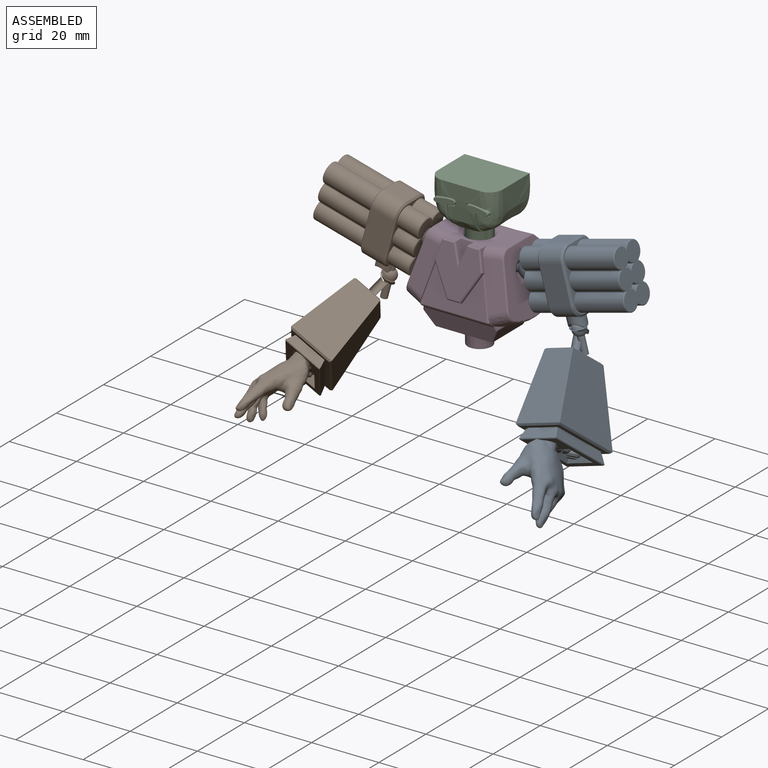
[diagram: assembled view]
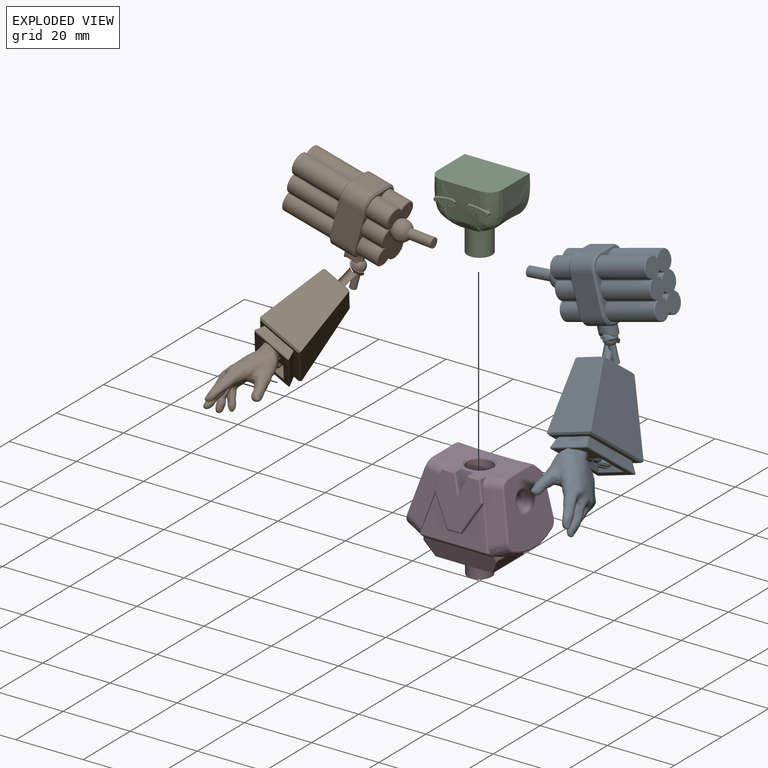
[diagram: exploded view]
GUIDED TOUR — MATED ASSEMBLY WITH SUBASSEMBLIES (Onshape document 221a4750a45c5d03d1ccc38b, AutoMate assembly 221a4750a45c5d03d1ccc38b_c852cb6edab7c67508c392dc_538b1da7b2ee24c12abb5837_default)

This assembly has 14 component occurrences arranged in 4 top-level units: 2 individual components plus 2 subassemblies (S0, S1). The tour has two levels: first the top level, where each subassembly is treated as one rigid unit; then each subassembly is toured internally in its own section (nesting deeper than one subassembly level is flattened into its subassembly's section).

Components are labeled P0..P13 across the whole record; subassembly units are labeled S0..S1. A mate is a constraint between two units; its type names the relative motion it leaves free:
  BALL — leaves all rotation about the listed point free (a ball joint),
  SLIDER — leaves translation along the listed axis free.
Axis/direction vectors are unit vectors and 'through' points are millimeter coordinates, both in the assembly's world frame.

TOP-LEVEL MATES (between units; each subassembly's internal mates are listed in its own section)
  1. SLIDER "Slider 2": P9 <-> P8, axis (0.000, 0.000, 1.000) through (0.00, 0.00, 4.60) mm

TOP-LEVEL ASSEMBLY ORDER
  1. P8 — the base component [order heuristic]
  2. S0 [order heuristic]
  3. S1 [order heuristic]
  4. P9 [order heuristic]
Order-tag legend:
  [order heuristic] — this assembly is geometrically interlocked (no collision-free removal order exists), so components are listed in mate-graph order; insertion feasibility is not verified.

Of the 14 component occurrences, 2 carry the full construction recipe — the FeatureScript program that regenerates the part's solid from scratch; the rest are supplied as boundary geometry only. Each toured unit is shown spotlighted twice — assembled, then exploded with a leader line back to its socket (green = recipe-attached component, orange = geometry-only, blue = subassembly unit; the rest desaturated gray).
NOTE — this tour is split across 2 documents so each fits a 32k-token context. This is document 1: the component sections continue in the remaining 1 document, each repeating the header above.
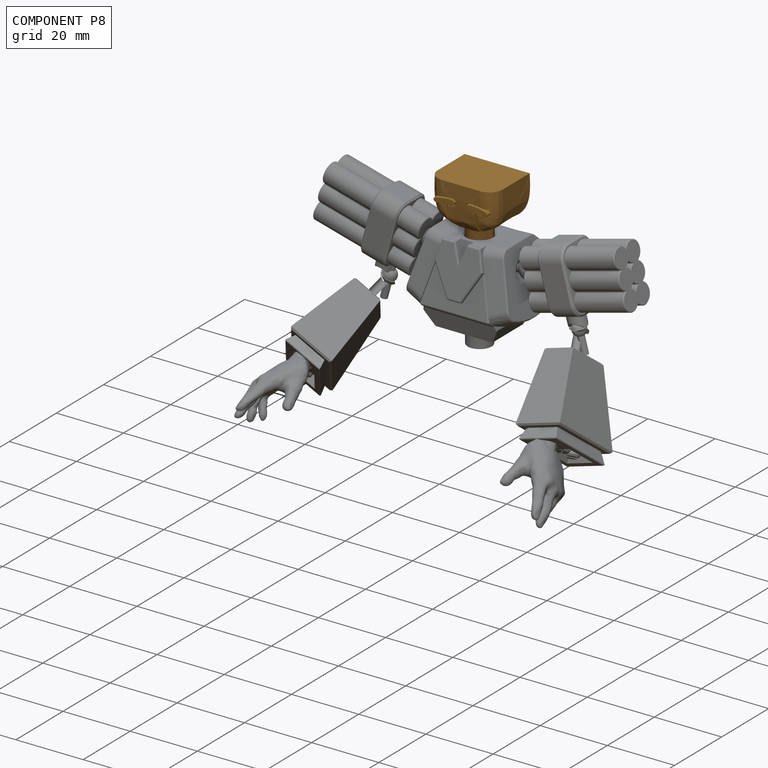
[diagram: component P8 — assembled]
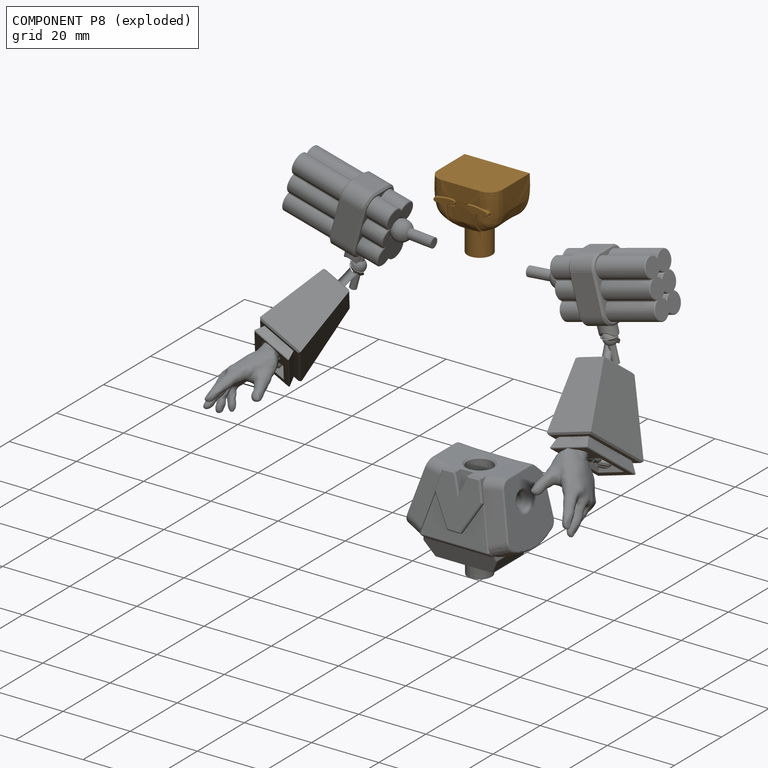
[diagram: component P8 — exploded]
COMPONENT P8 — geometry summary (no construction recipe available for this part):
  bounding box: 21.4 x 19.6 x 15.7 mm
  B-rep topology: 1 solid, 71 faces, 379 edges
  volume: 3542 mm^3 (54% of its bounding box)
  symmetry: mirror-symmetric across its x mid-plane
Held by: SLIDER mate "Slider 2" to P9.
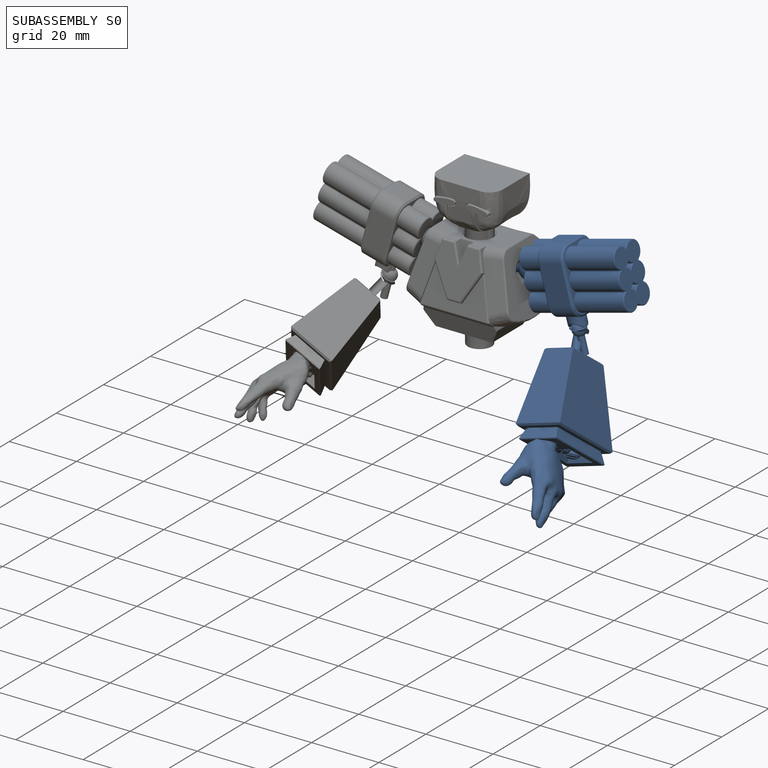
[diagram: subassembly S0 — assembled]
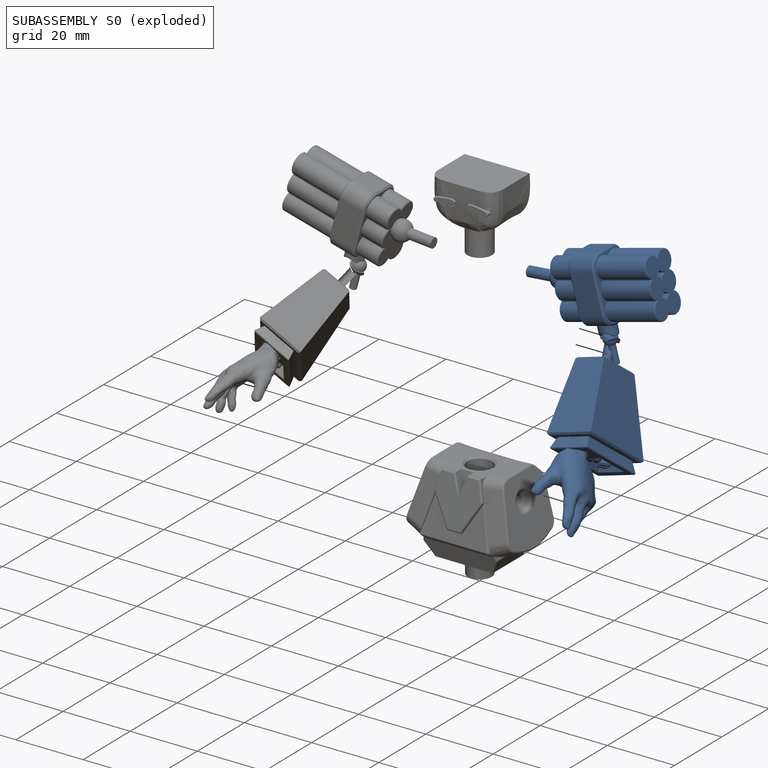
[diagram: subassembly S0 — exploded]
SUBASSEMBLY S0 — 6 components (P0, P2, P4, P6, P11, P12), of which 1 recipe-attached; toured below.
Held by: no mates (free).
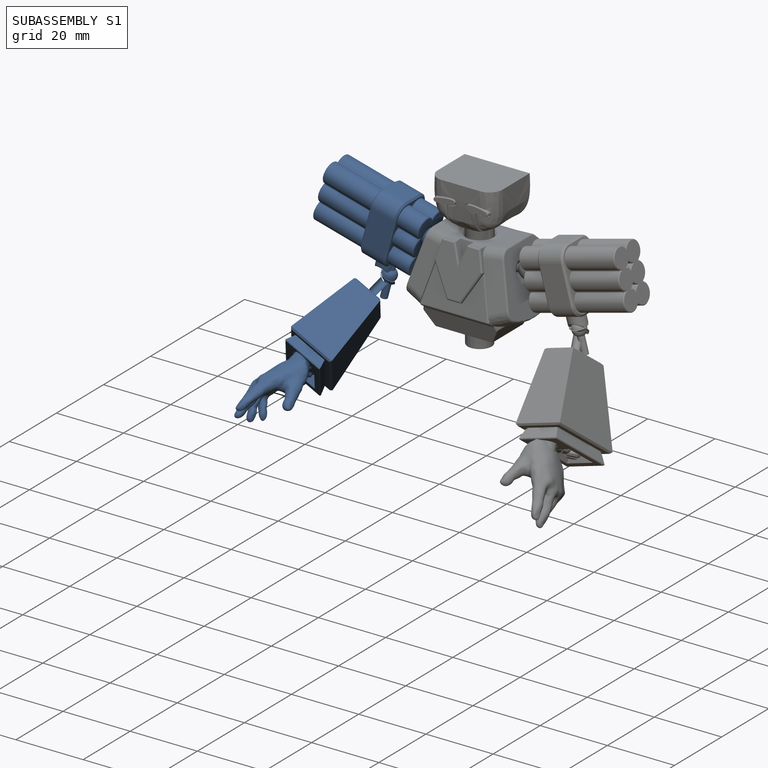
[diagram: subassembly S1 — assembled]
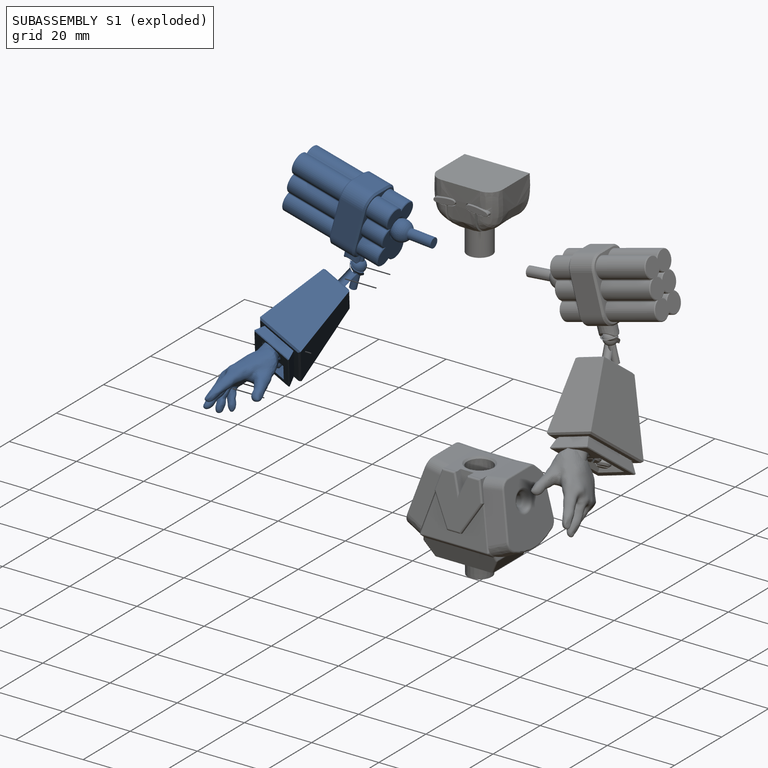
[diagram: subassembly S1 — exploded]
SUBASSEMBLY S1 — 6 components (P1, P3, P5, P7, P10, P13), of which 1 recipe-attached; toured below.
Held by: no mates (free).
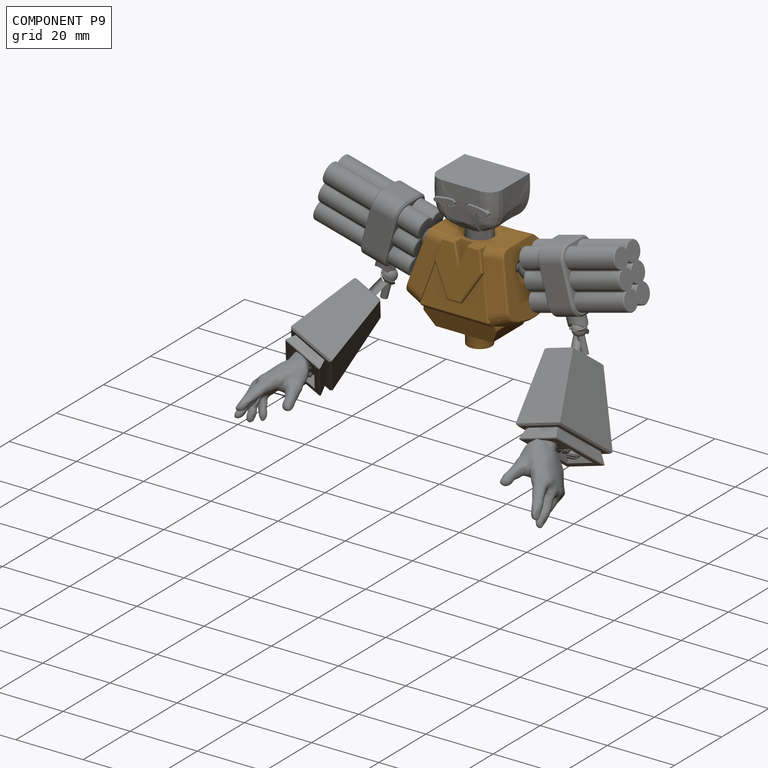
[diagram: component P9 — assembled]
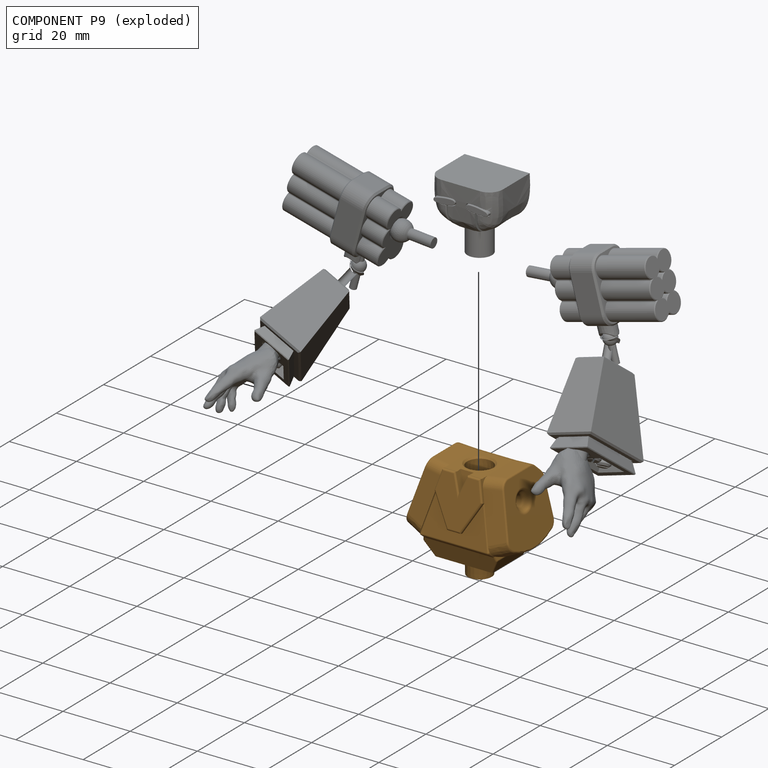
[diagram: component P9 — exploded]
COMPONENT P9 — geometry summary (no construction recipe available for this part):
  bounding box: 36.5 x 30.2 x 28.1 mm
  B-rep topology: 1 solid, 159 faces, 726 edges
  volume: 11747 mm^3 (38% of its bounding box)
Held by: SLIDER mate "Slider 2" to P8.
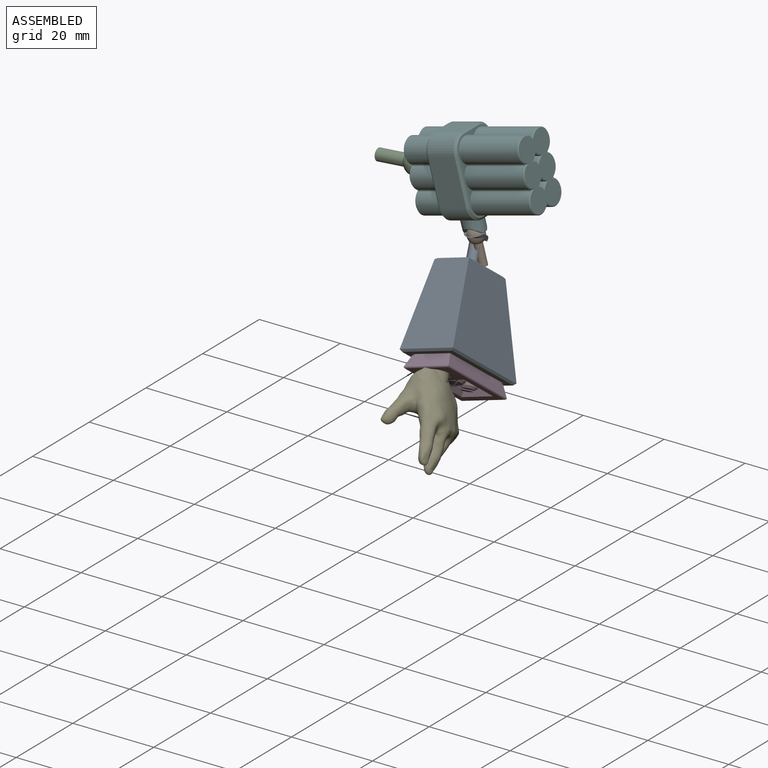
[diagram: subassembly S0 — assembled view]
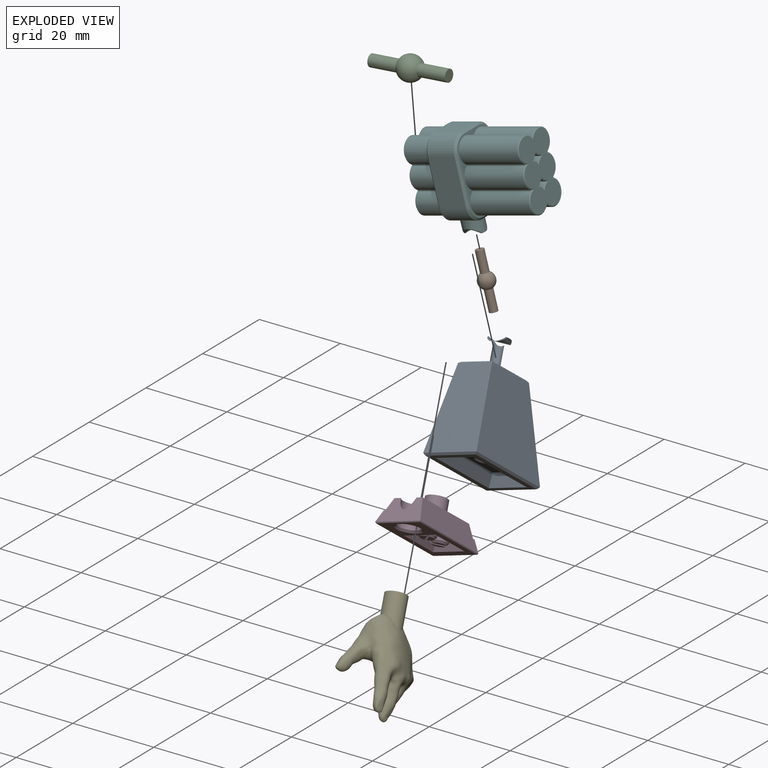
[diagram: subassembly S0 — exploded view]
SUBASSEMBLY S0 TOUR — 6 components, shown here in isolation at its own camera.

INTERNAL MATES
  1. SLIDER "Slider 1": P12 <-> P2, axis (0.259, 0.000, -0.966) through (28.32, 0.76, -5.72) mm
  2. BALL "Ball 2": P2 <-> P0, direction (-0.259, 0.000, 0.966) through (29.10, 0.76, -8.64) mm
  3. BALL "Ball 1": P2 <-> P12, direction (-0.259, 0.000, 0.966) through (29.10, 0.76, -8.64) mm
  4. SLIDER "Slider 2": P0 <-> P6, axis (0.229, -0.629, -0.743) through (35.25, -12.65, -29.04) mm
  5. SLIDER "Slider 3": P6 <-> P11, axis (0.229, -0.629, -0.743) through (35.48, -22.06, -28.75) mm
  6. BALL "Ball 3": P12 <-> P4, direction (-0.087, 0.000, 0.996) through (14.59, 0.76, 3.66) mm
  7. SLIDER "Slider 4": P4 <-> P12, axis (0.996, 0.000, 0.087) through (20.69, 0.76, 4.19) mm
  8. SLIDER "Slider 3": P6 <-> P11, axis (0.229, -0.629, -0.743) through (35.48, -22.06, -28.75) mm
  9. SLIDER "Slider 1": P12 <-> P2, axis (0.259, 0.000, -0.966) through (28.32, 0.76, -5.72) mm
  10. SLIDER "Slider 4": P4 <-> P12, axis (0.996, 0.000, 0.087) through (20.69, 0.76, 4.19) mm
  11. BALL "Ball 3": P12 <-> P4, direction (-0.087, 0.000, 0.996) through (14.59, 0.76, 3.66) mm
  12. BALL "Ball 1": P2 <-> P12, direction (-0.259, 0.000, 0.966) through (29.10, 0.76, -8.64) mm
  13. SLIDER "Slider 2": P0 <-> P6, axis (0.229, -0.629, -0.743) through (35.25, -12.65, -29.04) mm
  14. BALL "Ball 2": P2 <-> P0, direction (-0.259, 0.000, 0.966) through (29.10, 0.76, -8.64) mm

ASSEMBLY ORDER (within the subassembly)
  1. P12 — the base component [order heuristic]
  2. P2 [order heuristic]
  3. P4 [order heuristic]
  4. P0 [order heuristic]
  5. P6 [order heuristic]
  6. P11 [order heuristic]
Order-tag legend:
  [order heuristic] — this assembly is geometrically interlocked (no collision-free removal order exists), so components are listed in mate-graph order; insertion feasibility is not verified.
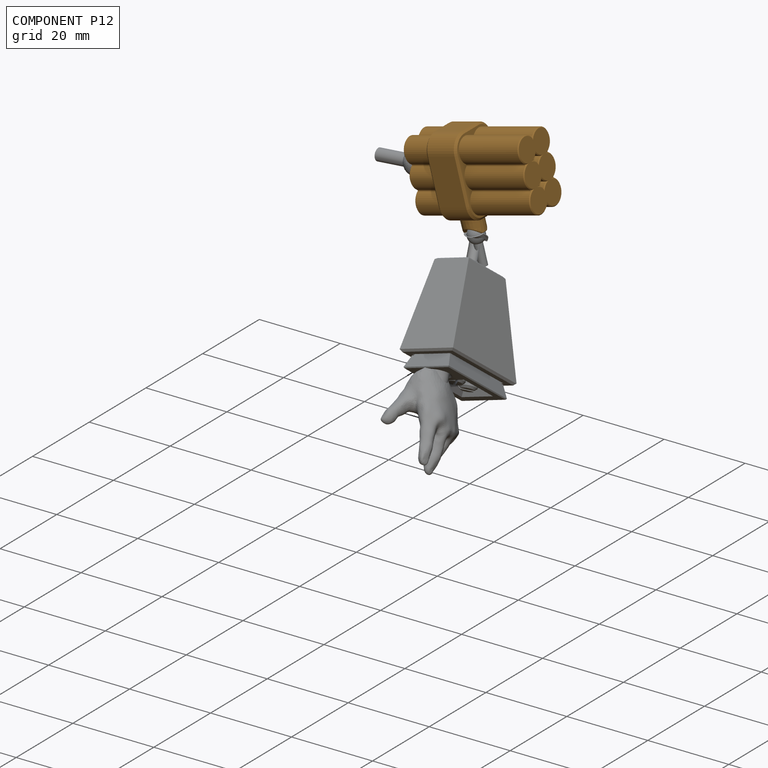
[diagram: component P12 — assembled]
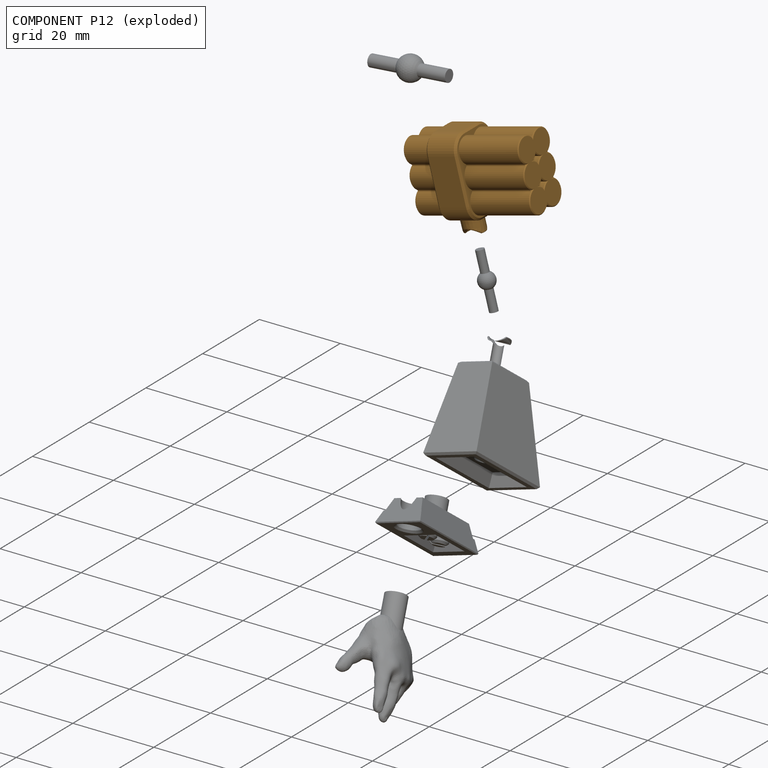
[diagram: component P12 — exploded]
COMPONENT P12 — geometry summary (no construction recipe available for this part):
  bounding box: 32.0 x 26.4 x 13.1 mm
  B-rep topology: 1 solid, 112 faces, 570 edges
  volume: 5320 mm^3 (48% of its bounding box)
  symmetry: mirror-symmetric across its y mid-plane
Held by: SLIDER mate "Slider 1" to P2; BALL mate "Ball 1" to P2; BALL mate "Ball 3" to P4; SLIDER mate "Slider 4" to P4; SLIDER mate "Slider 1" to P2; SLIDER mate "Slider 4" to P4; BALL mate "Ball 3" to P4; BALL mate "Ball 1" to P2.
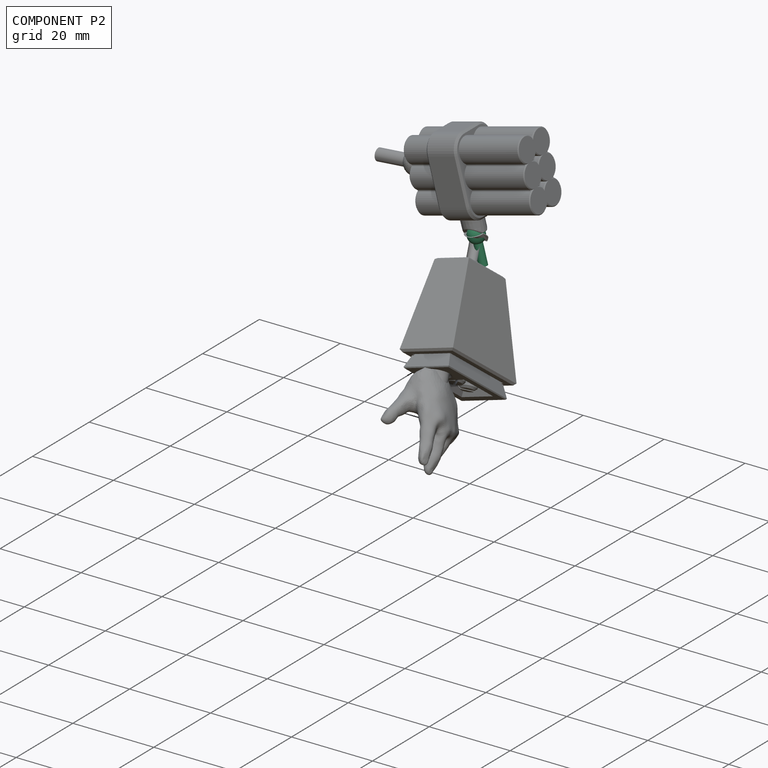
[diagram: component P2 — assembled]
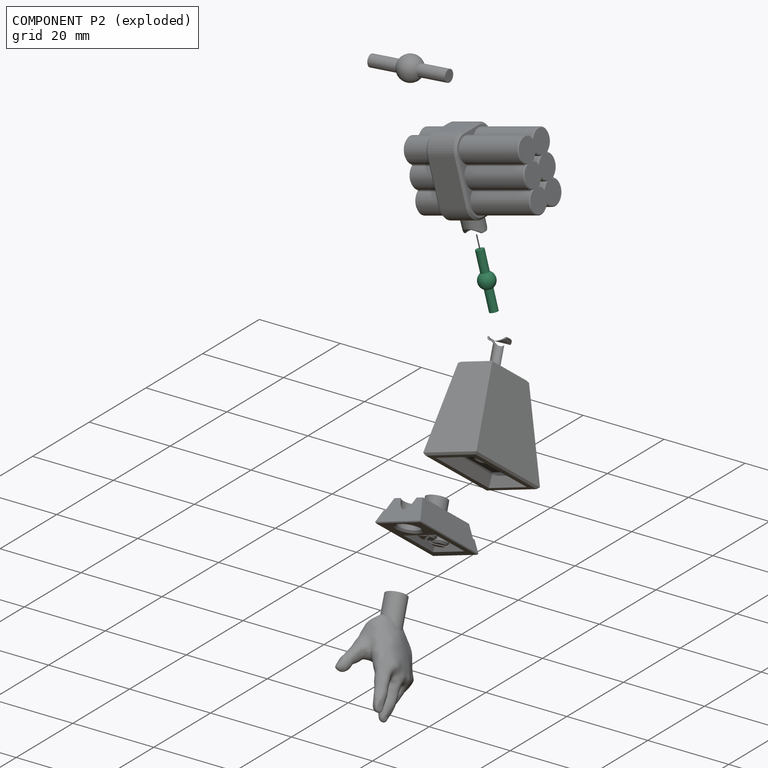
[diagram: component P2 — exploded]
COMPONENT P2 — recipe-attached (CADFS 00911417, mesh-verified: the recipe's output STEP matches this component's geometry to below the mesh-comparison resolution (tessellation chordal tolerance ~0.0219 mm)).
Held by: SLIDER mate "Slider 1" to P12; BALL mate "Ball 2" to P0; BALL mate "Ball 1" to P12; SLIDER mate "Slider 1" to P12; BALL mate "Ball 1" to P12; BALL mate "Ball 2" to P0.
Construction recipe (FeatureScript — the CAD program that rebuilds this solid; sketch coordinates are in the units given by the * unit suffixes, e.g. mm):

FeatureScript 1511;
import(path : "onshape/std/geometry.fs", version : "1511.0");
import(path : "onshape/std/common.fs", version : "1511.0");
const mm = millimeter;
const VERTEX = EntityType.VERTEX;
const EDGE = EntityType.EDGE;
const FACE = EntityType.FACE;
const BODY = EntityType.BODY;
function v(x, y){return vector(x, y);}
function OD(order){return orderDisambiguation(order);}
function OSD(set){return originalSetDisambiguation(set);}
function TD(topology){return topologyDisambiguation(topology);}
function TDD(query){return trueDependencyDisambiguation(query);}
function sQuery(a, b, c) {return sketchEntityQuery(a, b, c);}

annotation { "Feature Type Name" : "Feature", "Feature Type Description" : "" }
export const myFeature = defineFeature(function(context is Context, id is Id, definition is map)
    precondition{}
    {
        {
            var Q0;
            Q0=qCreatedBy(makeId("Front.planeOp"),FACE);
            var sketch = newSketch(context, id + "F0", { "sketchPlane" : qUnion([Q0])});
            skLineSegment(sketch, "E0", {"start": v(0, 0) * mm, "end": v(-2, 0) * mm, "construction": true});
            skLineSegment(sketch, "E1", {"start": v(0, 6.73) * mm, "end": v(0, 0) * mm, "construction": true});
            skArc(sketch, "E2", {"start": v(-2, 0) * mm, "mid": v(-1.73, 1) * mm, "end": v(-1, 1.73) * mm});
            skLineSegment(sketch, "E3", {"start": v(-1, 1.73) * mm, "end": v(-1, 6.73) * mm});
            skLineSegment(sketch, "E4", {"start": v(-1, 6.73) * mm, "end": v(0, 6.73) * mm});
            skLineSegment(sketch, "E5.MirrorCS", {"start": v(-1, -1.73) * mm, "end": v(-1, -6.73) * mm});
            skLineSegment(sketch, "E6.MirrorCS", {"start": v(-1, -6.73) * mm, "end": v(0, -6.73) * mm});
            skArc(sketch, "E7.MirrorCS", {"start": v(-2, 0) * mm, "mid": v(-1.73, -1) * mm, "end": v(-1, -1.73) * mm});
            skLineSegment(sketch, "E8", {"start": v(0, 6.73) * mm, "end": v(0, -6.73) * mm});
            skSolve(sketch);
        }
        {
            var Q0;
            Q0 = qSketchRegion(id + "F0", true);
            var Q1;
            Q1=sQuery(id+"F0.wireOp",EDGE,"E8");
            revolve(context, id + "F1", {"surfaceOperationType" : NewSurfaceOperationType.NEW, "entities" : qUnion([Q0]), "axis" : qUnion([Q1]), "revolveType" : RevolveType.FULL});
        }
    });
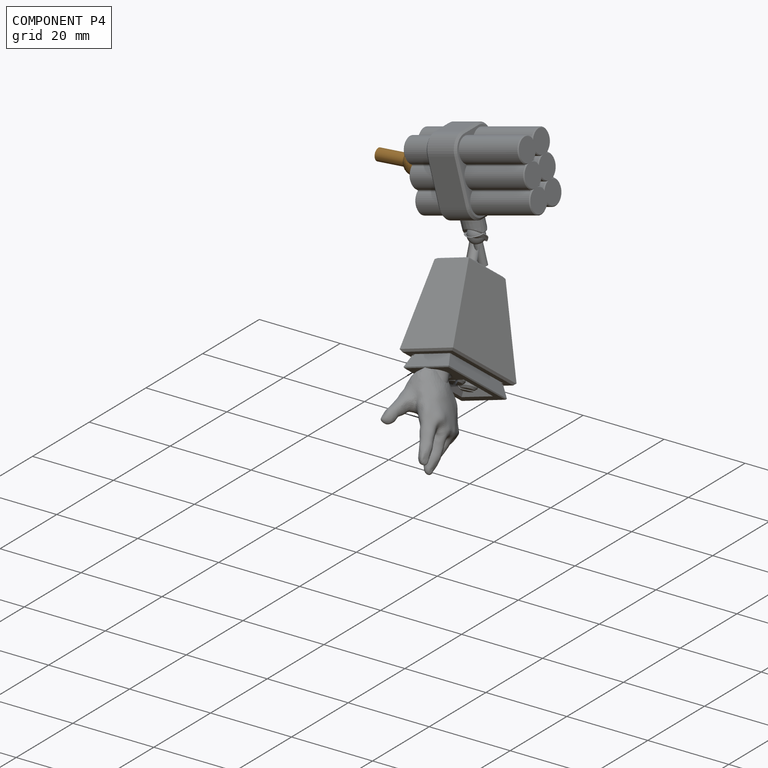
[diagram: component P4 — assembled]
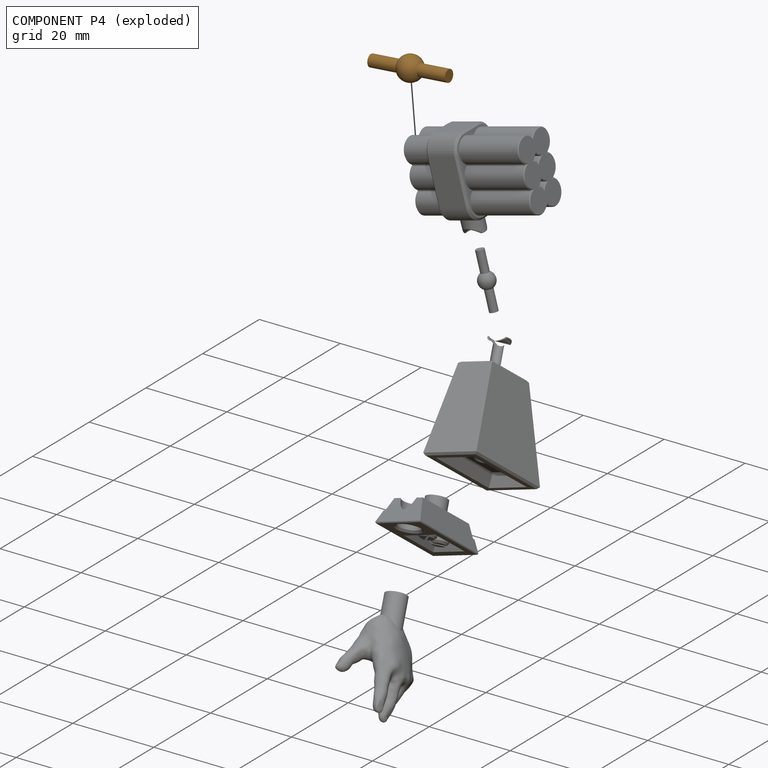
[diagram: component P4 — exploded]
COMPONENT P4 — geometry summary (no construction recipe available for this part):
  bounding box: 19.3 x 6.0 x 6.0 mm
  B-rep topology: 1 solid, 5 faces, 14 edges
  volume: 203 mm^3 (29% of its bounding box)
  symmetry: 2-fold rotationally symmetric about the x axis; 2-fold rotationally symmetric about the y axis; revolution-symmetric about the z axis through its bounding-box center; mirror-symmetric across its x mid-plane, y mid-plane, z mid-plane
Held by: BALL mate "Ball 3" to P12; SLIDER mate "Slider 4" to P12; SLIDER mate "Slider 4" to P12; BALL mate "Ball 3" to P12.
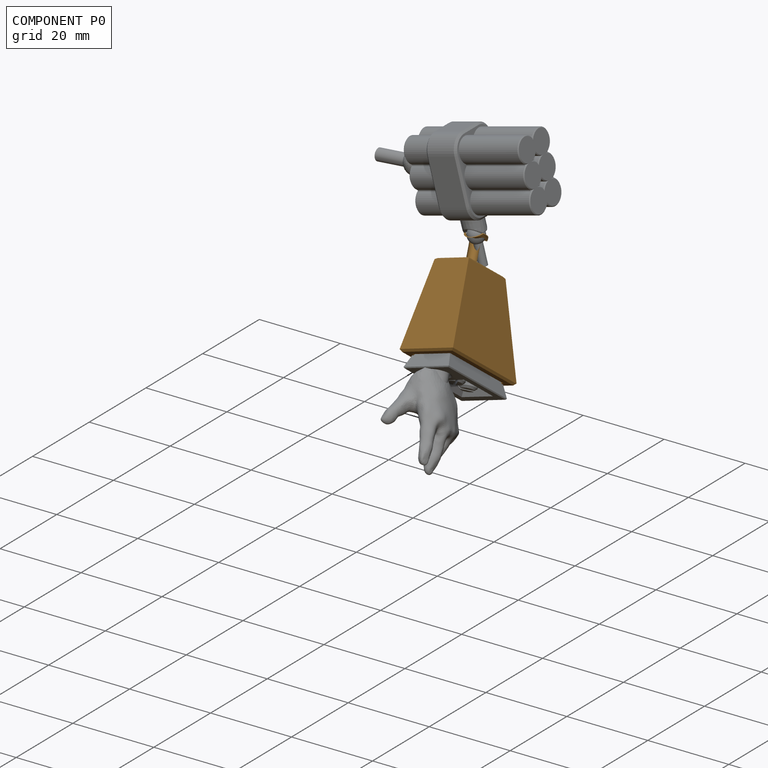
[diagram: component P0 — assembled]
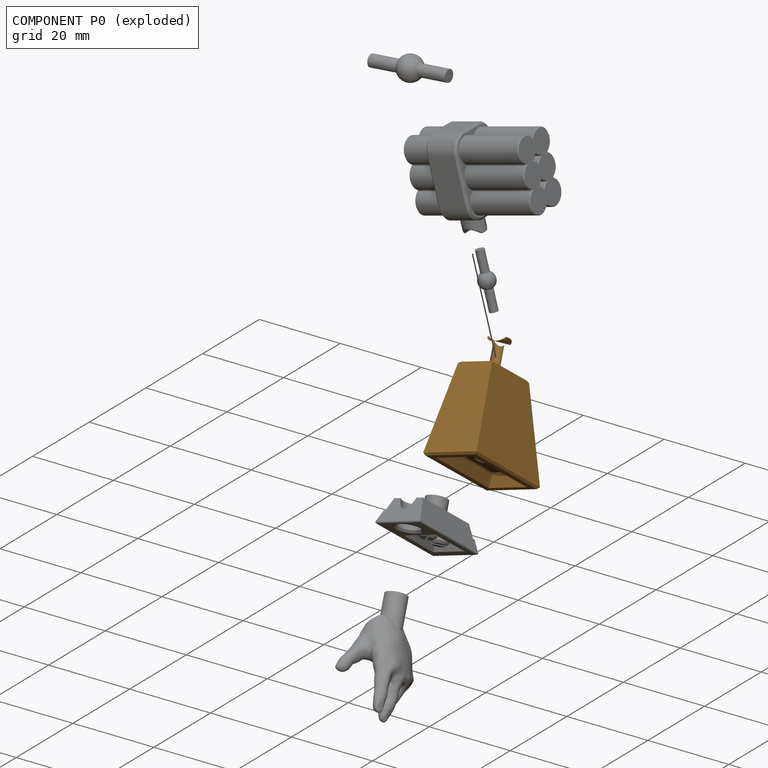
[diagram: component P0 — exploded]
COMPONENT P0 — geometry summary (no construction recipe available for this part):
  bounding box: 29.7 x 24.7 x 16.9 mm
  B-rep topology: 1 solid, 49 faces, 234 edges
  volume: 3768 mm^3 (30% of its bounding box)
Held by: BALL mate "Ball 2" to P2; SLIDER mate "Slider 2" to P6; SLIDER mate "Slider 2" to P6; BALL mate "Ball 2" to P2.
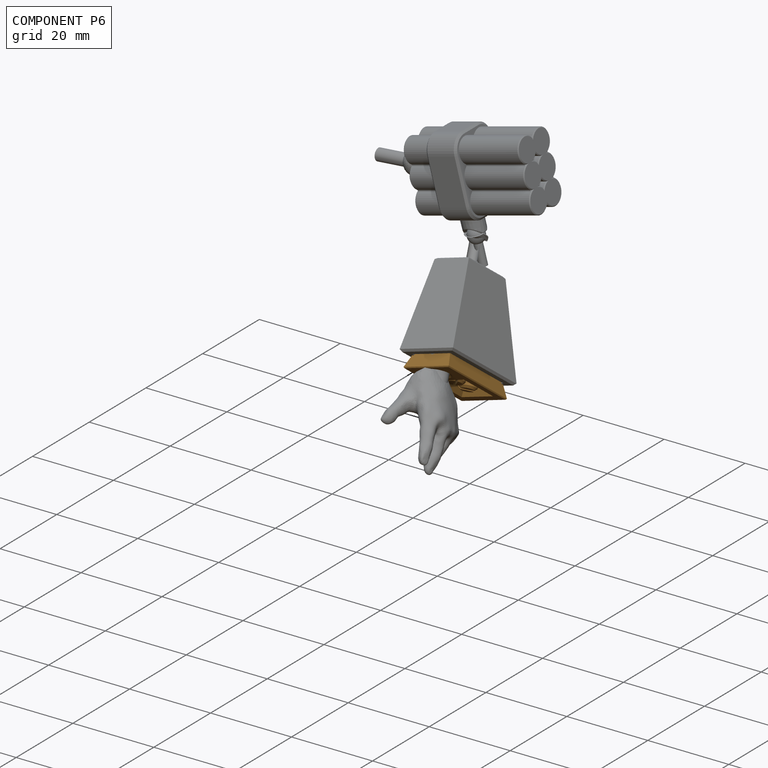
[diagram: component P6 — assembled]
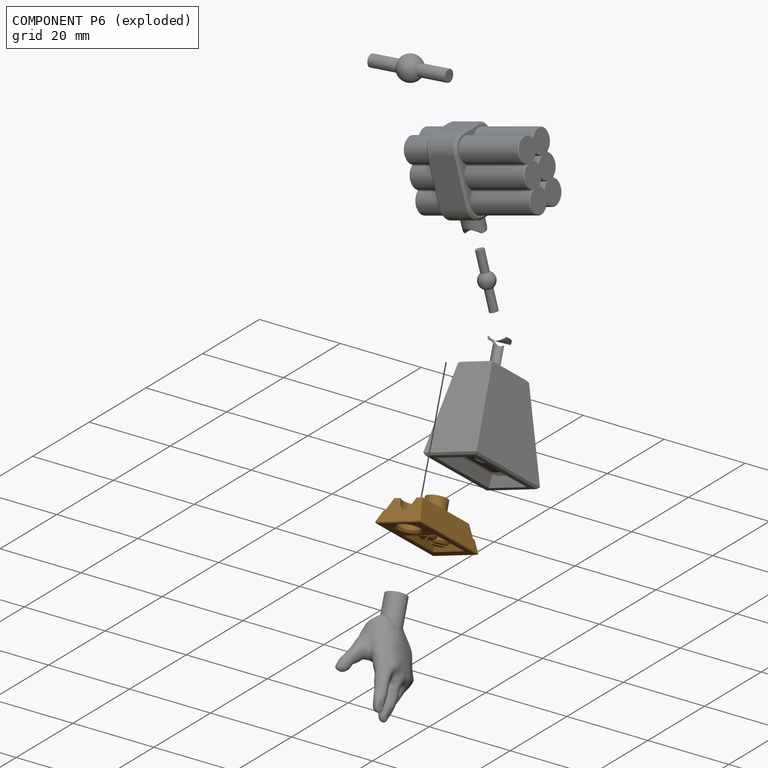
[diagram: component P6 — exploded]
COMPONENT P6 — geometry summary (no construction recipe available for this part):
  bounding box: 22.5 x 14.6 x 10.5 mm
  B-rep topology: 1 solid, 41 faces, 200 edges
  volume: 861 mm^3 (25% of its bounding box)
Held by: SLIDER mate "Slider 2" to P0; SLIDER mate "Slider 3" to P11; SLIDER mate "Slider 3" to P11; SLIDER mate "Slider 2" to P0.
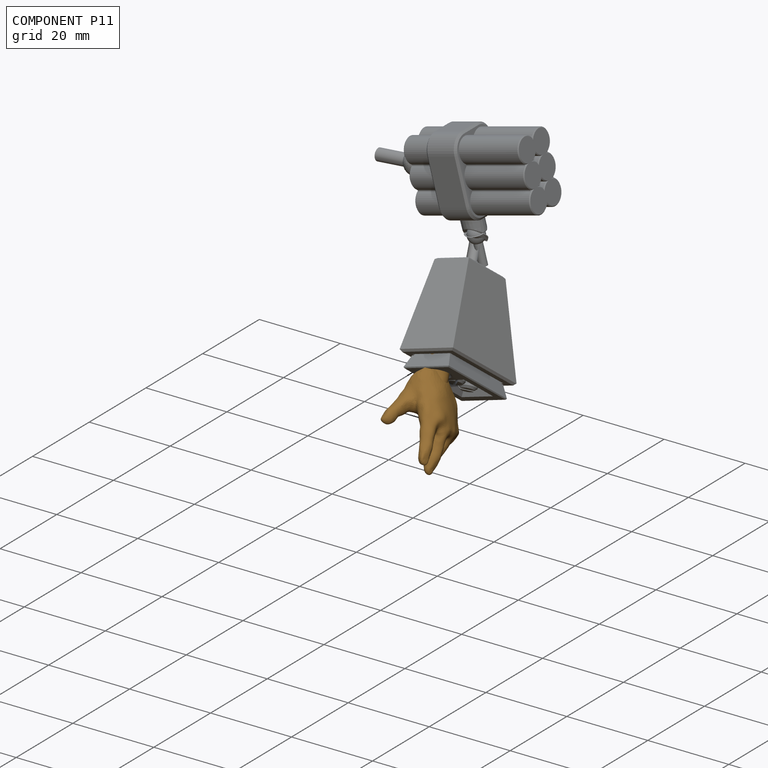
[diagram: component P11 — assembled]
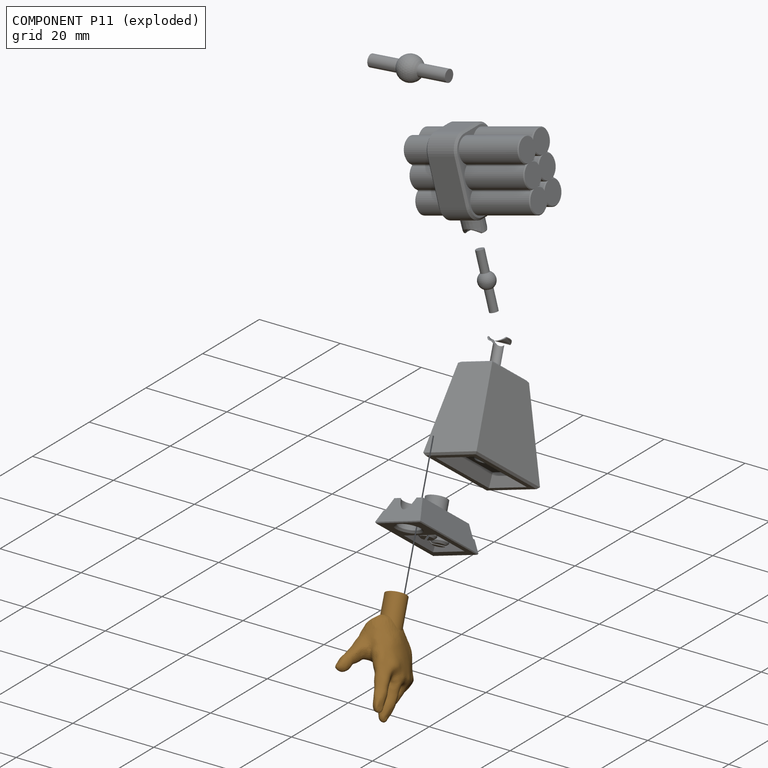
[diagram: component P11 — exploded]
COMPONENT P11 — geometry summary (no construction recipe available for this part):
  bounding box: 25.9 x 18.8 x 12.1 mm
  B-rep topology: 1 solid, 28821 faces, 86576 edges
  volume: 1061 mm^3 (18% of its bounding box)
Held by: SLIDER mate "Slider 3" to P6; SLIDER mate "Slider 3" to P6.
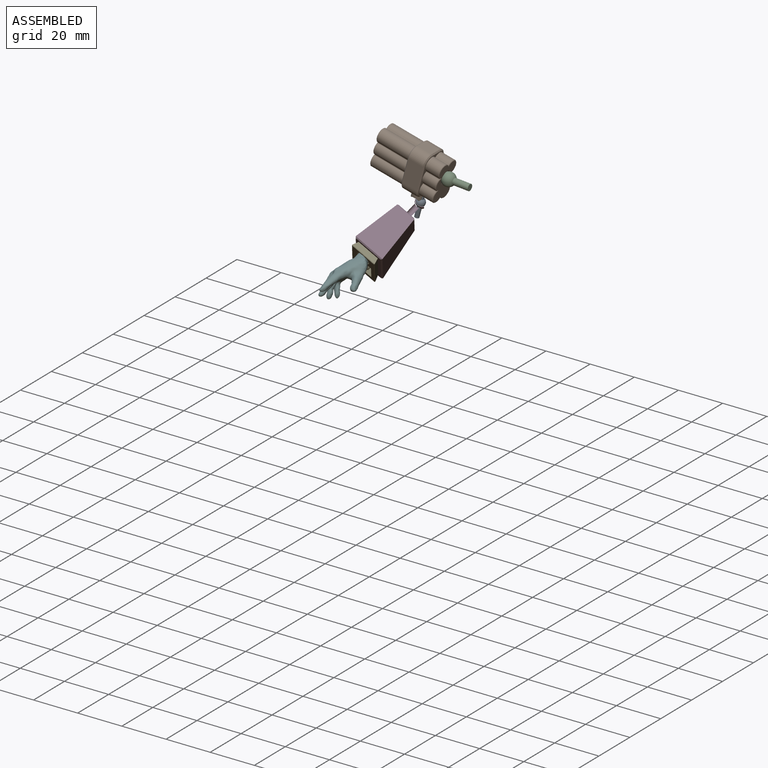
[diagram: subassembly S1 — assembled view]
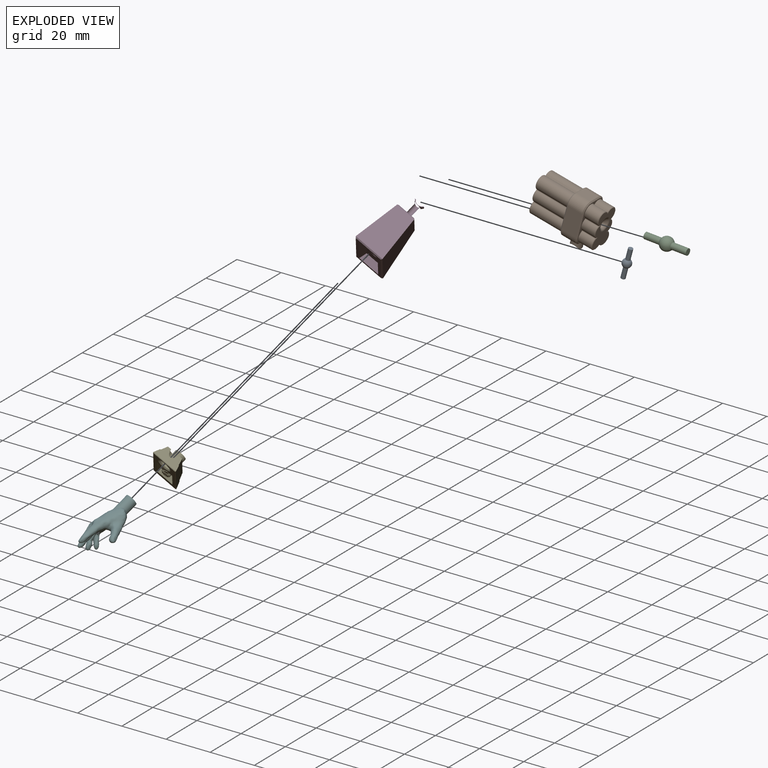
[diagram: subassembly S1 — exploded view]
SUBASSEMBLY S1 TOUR — 6 components, shown here in isolation at its own camera.

INTERNAL MATES
  1. BALL "Ball 2": P3 <-> P5, direction (0.087, 0.000, 0.996) through (-14.39, 0.56, 3.75) mm
  2. SLIDER "Slider 4": P7 <-> P10, axis (-0.264, -0.798, -0.542) through (-35.17, -18.15, -25.01) mm
  3. SLIDER "Slider 3": P13 <-> P7, axis (-0.264, -0.798, -0.542) through (-33.32, -26.26, -22.36) mm
  4. SLIDER "Slider 3": P13 <-> P7, axis (-0.264, -0.798, -0.542) through (-33.32, -26.26, -22.36) mm
  5. BALL "Ball 2": P3 <-> P5, direction (0.087, 0.000, 0.996) through (-14.39, 0.56, 3.75) mm
  6. SLIDER "Slider 4": P7 <-> P10, axis (-0.264, -0.798, -0.542) through (-35.17, -18.15, -25.01) mm

ASSEMBLY ORDER (within the subassembly)
  1. P7 — the base component [order heuristic]
  2. P1 [order heuristic]
  3. P3 [order heuristic]
  4. P5 [order heuristic]
  5. P10 [order heuristic]
  6. P13 [order heuristic]
Order-tag legend:
  [order heuristic] — this assembly is geometrically interlocked (no collision-free removal order exists), so components are listed in mate-graph order; insertion feasibility is not verified.
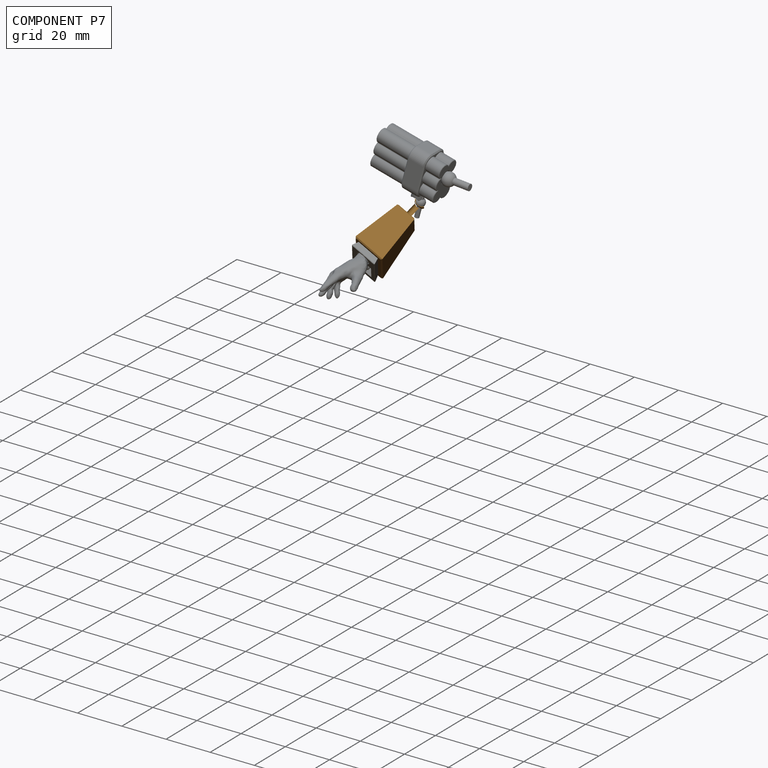
[diagram: component P7 — assembled]
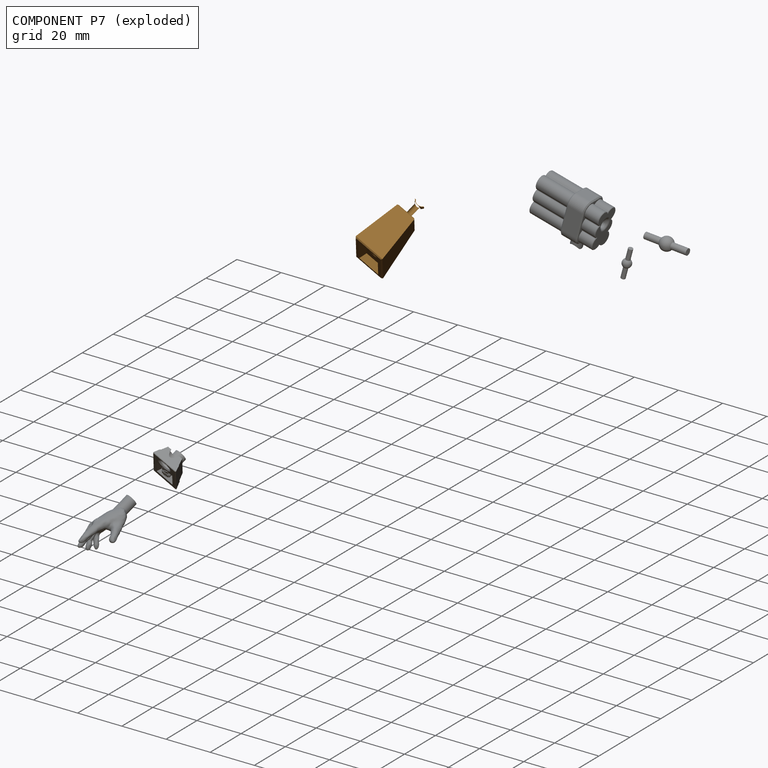
[diagram: component P7 — exploded]
COMPONENT P7 — geometry summary (no construction recipe available for this part):
  bounding box: 29.7 x 24.7 x 16.9 mm
  B-rep topology: 1 solid, 49 faces, 234 edges
  volume: 3768 mm^3 (30% of its bounding box)
Held by: SLIDER mate "Slider 4" to P10; SLIDER mate "Slider 3" to P13; SLIDER mate "Slider 3" to P13; SLIDER mate "Slider 4" to P10.
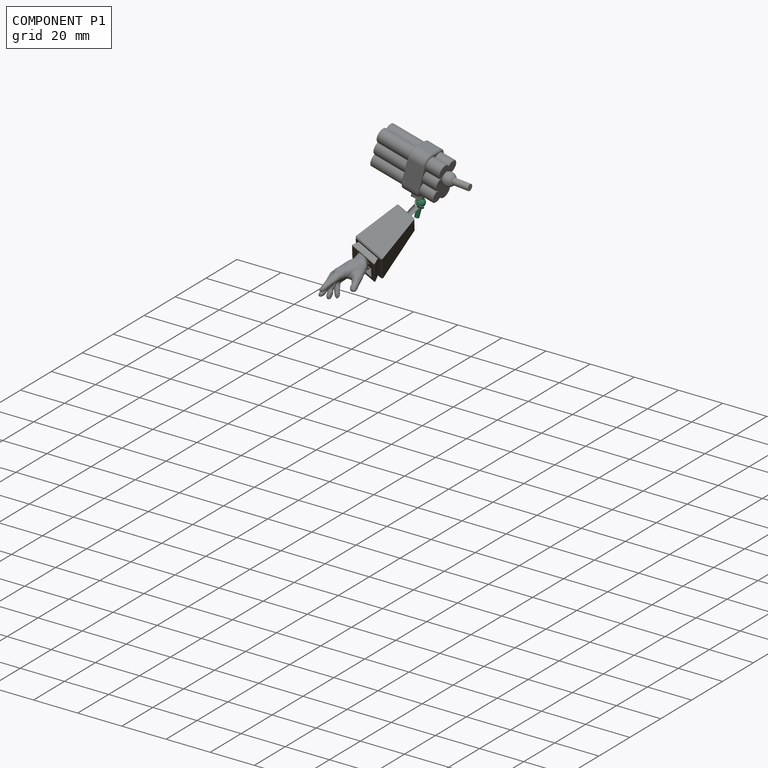
[diagram: component P1 — assembled]
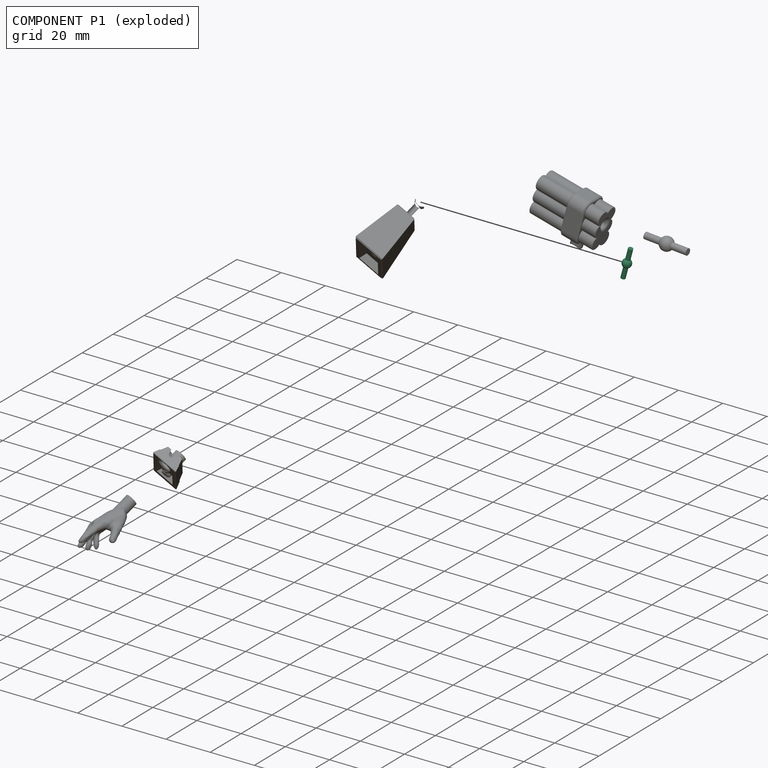
[diagram: component P1 — exploded]
COMPONENT P1 — recipe-attached (CADFS 00911417, mesh-verified: the recipe's output STEP matches this component's geometry to below the mesh-comparison resolution (tessellation chordal tolerance ~0.0219 mm)).
Held by: no mates (free).
Construction recipe (FeatureScript — the CAD program that rebuilds this solid; sketch coordinates are in the units given by the * unit suffixes, e.g. mm):

FeatureScript 1511;
import(path : "onshape/std/geometry.fs", version : "1511.0");
import(path : "onshape/std/common.fs", version : "1511.0");
const mm = millimeter;
const VERTEX = EntityType.VERTEX;
const EDGE = EntityType.EDGE;
const FACE = EntityType.FACE;
const BODY = EntityType.BODY;
function v(x, y){return vector(x, y);}
function OD(order){return orderDisambiguation(order);}
function OSD(set){return originalSetDisambiguation(set);}
function TD(topology){return topologyDisambiguation(topology);}
function TDD(query){return trueDependencyDisambiguation(query);}
function sQuery(a, b, c) {return sketchEntityQuery(a, b, c);}

annotation { "Feature Type Name" : "Feature", "Feature Type Description" : "" }
export const myFeature = defineFeature(function(context is Context, id is Id, definition is map)
    precondition{}
    {
        {
            var Q0;
            Q0=qCreatedBy(makeId("Front.planeOp"),FACE);
            var sketch = newSketch(context, id + "F0", { "sketchPlane" : qUnion([Q0])});
            skLineSegment(sketch, "E0", {"start": v(0, 0) * mm, "end": v(-2, 0) * mm, "construction": true});
            skLineSegment(sketch, "E1", {"start": v(0, 6.73) * mm, "end": v(0, 0) * mm, "construction": true});
            skArc(sketch, "E2", {"start": v(-2, 0) * mm, "mid": v(-1.73, 1) * mm, "end": v(-1, 1.73) * mm});
            skLineSegment(sketch, "E3", {"start": v(-1, 1.73) * mm, "end": v(-1, 6.73) * mm});
            skLineSegment(sketch, "E4", {"start": v(-1, 6.73) * mm, "end": v(0, 6.73) * mm});
            skLineSegment(sketch, "E5.MirrorCS", {"start": v(-1, -1.73) * mm, "end": v(-1, -6.73) * mm});
            skLineSegment(sketch, "E6.MirrorCS", {"start": v(-1, -6.73) * mm, "end": v(0, -6.73) * mm});
            skArc(sketch, "E7.MirrorCS", {"start": v(-2, 0) * mm, "mid": v(-1.73, -1) * mm, "end": v(-1, -1.73) * mm});
            skLineSegment(sketch, "E8", {"start": v(0, 6.73) * mm, "end": v(0, -6.73) * mm});
            skSolve(sketch);
        }
        {
            var Q0;
            Q0 = qSketchRegion(id + "F0", true);
            var Q1;
            Q1=sQuery(id+"F0.wireOp",EDGE,"E8");
            revolve(context, id + "F1", {"surfaceOperationType" : NewSurfaceOperationType.NEW, "entities" : qUnion([Q0]), "axis" : qUnion([Q1]), "revolveType" : RevolveType.FULL});
        }
    });
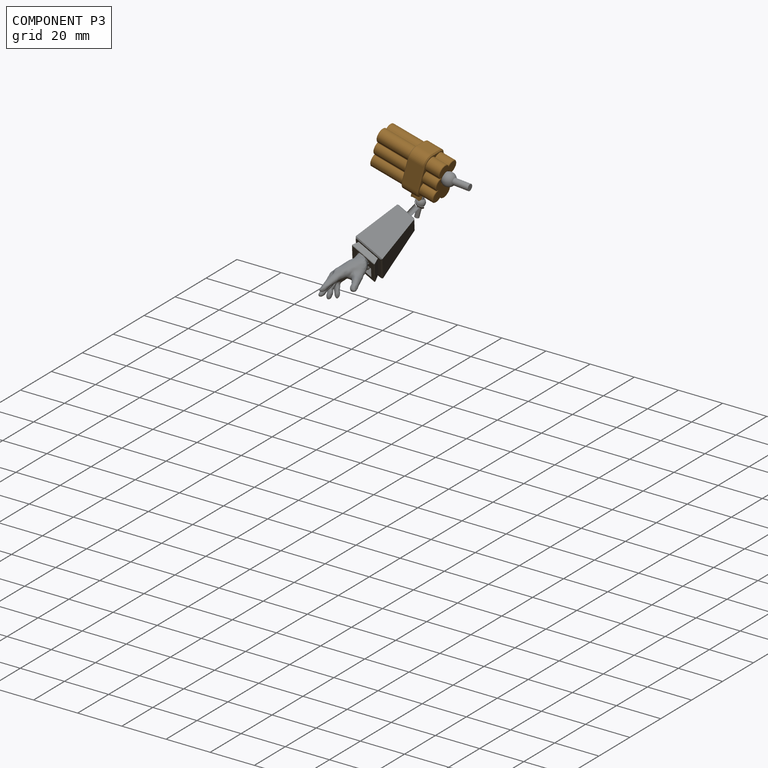
[diagram: component P3 — assembled]
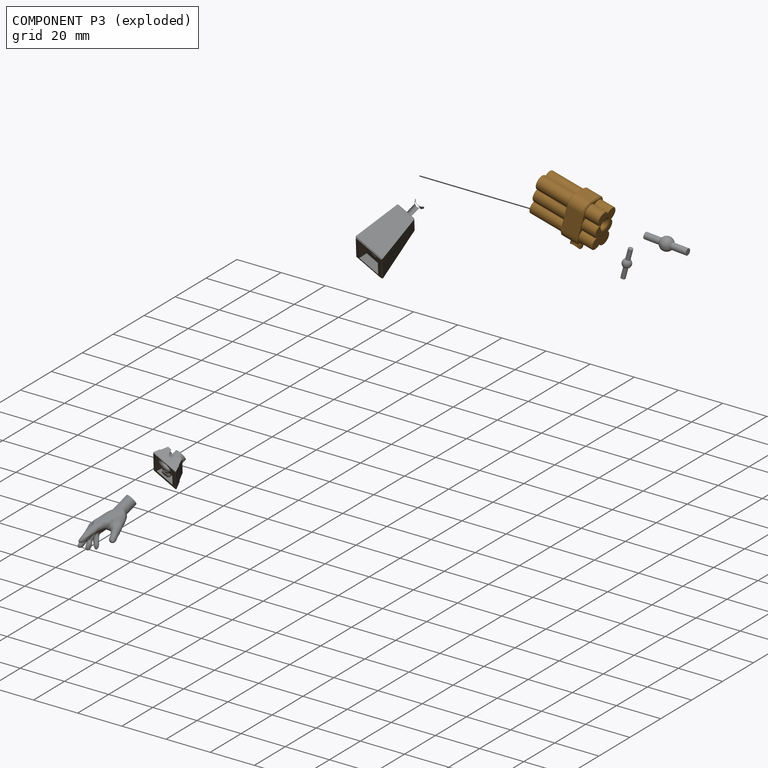
[diagram: component P3 — exploded]
COMPONENT P3 — geometry summary (no construction recipe available for this part):
  bounding box: 32.0 x 26.4 x 13.1 mm
  B-rep topology: 1 solid, 112 faces, 570 edges
  volume: 5320 mm^3 (48% of its bounding box)
  symmetry: mirror-symmetric across its y mid-plane
Held by: BALL mate "Ball 2" to P5; BALL mate "Ball 2" to P5.
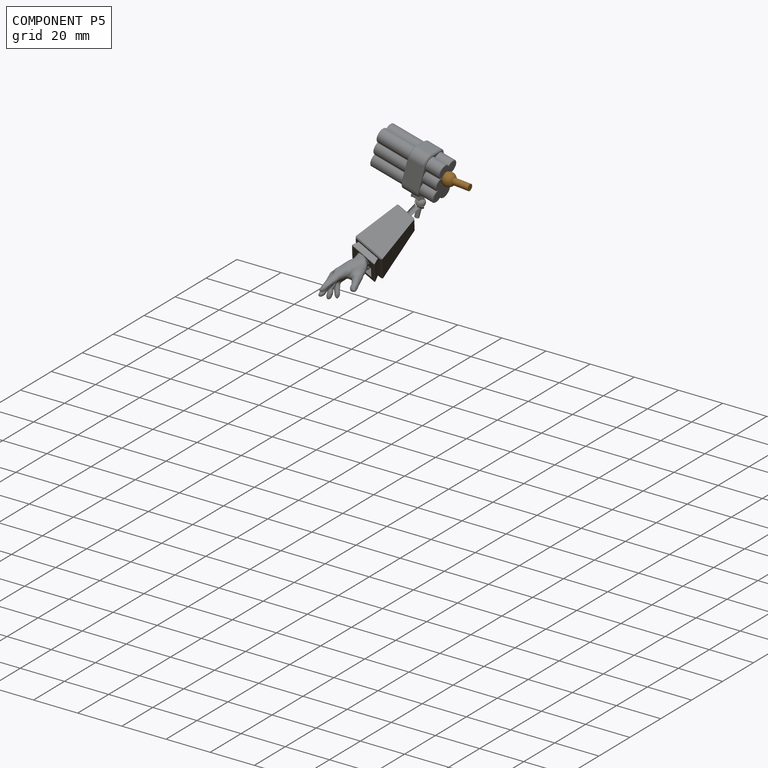
[diagram: component P5 — assembled]
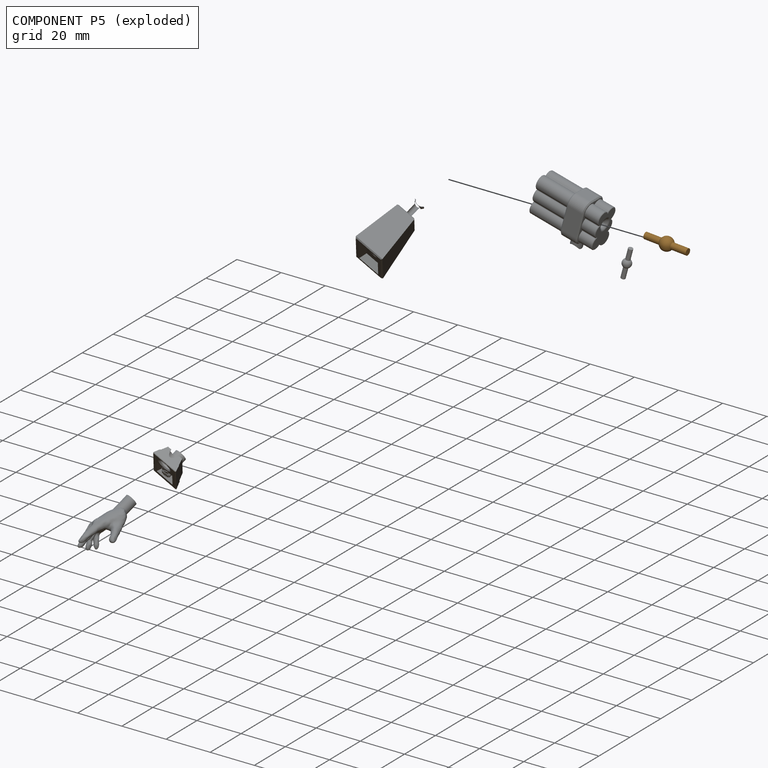
[diagram: component P5 — exploded]
COMPONENT P5 — geometry summary (no construction recipe available for this part):
  bounding box: 19.3 x 6.0 x 6.0 mm
  B-rep topology: 1 solid, 5 faces, 14 edges
  volume: 203 mm^3 (29% of its bounding box)
  symmetry: 2-fold rotationally symmetric about the x axis; 2-fold rotationally symmetric about the y axis; revolution-symmetric about the z axis through its bounding-box center; mirror-symmetric across its x mid-plane, y mid-plane, z mid-plane
Held by: BALL mate "Ball 2" to P3; BALL mate "Ball 2" to P3.
